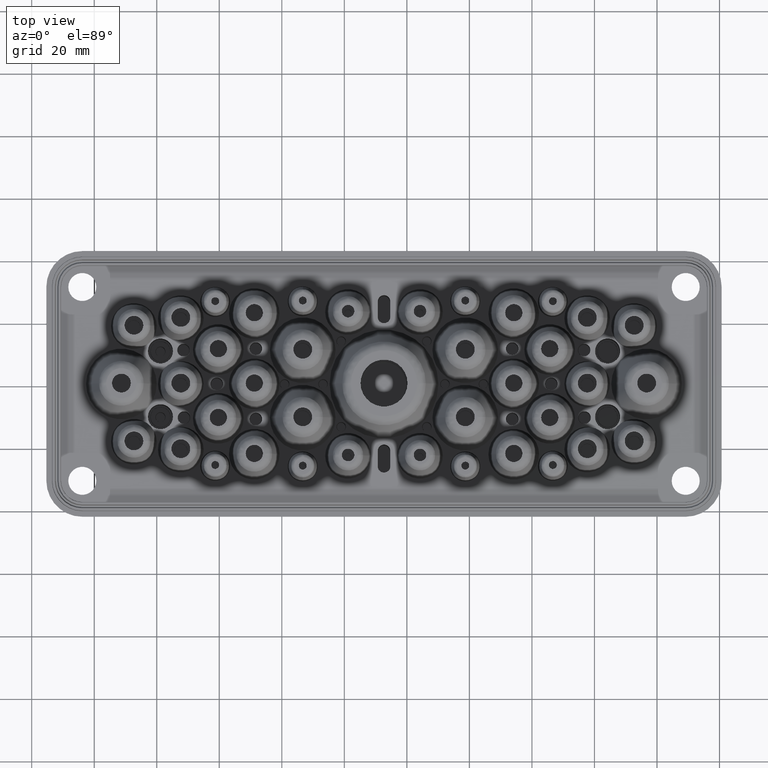
[diagram: clean part render]
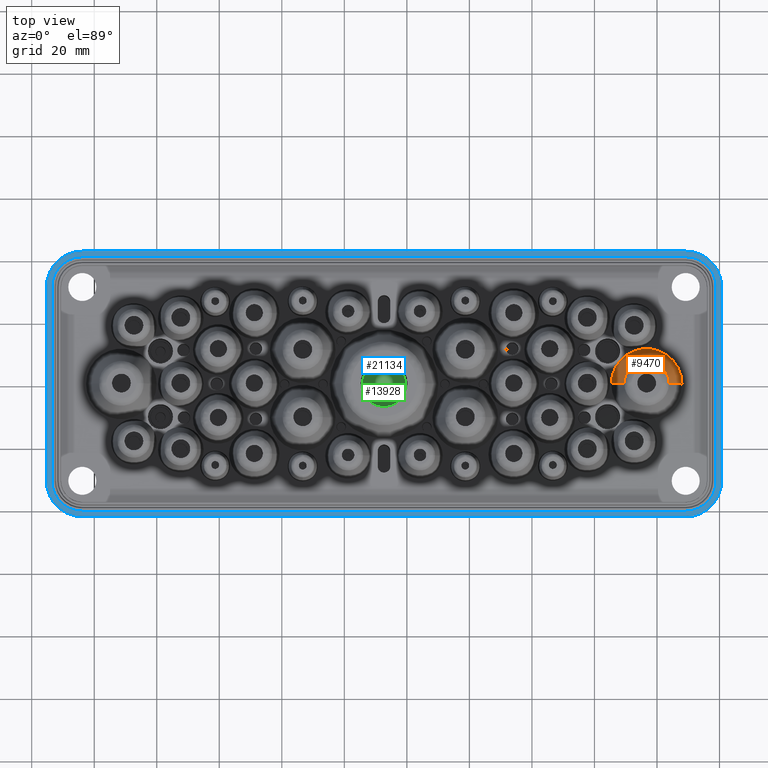
[diagram: same view with three faces highlighted in distinct colors, each labeled with its STEP entity id]
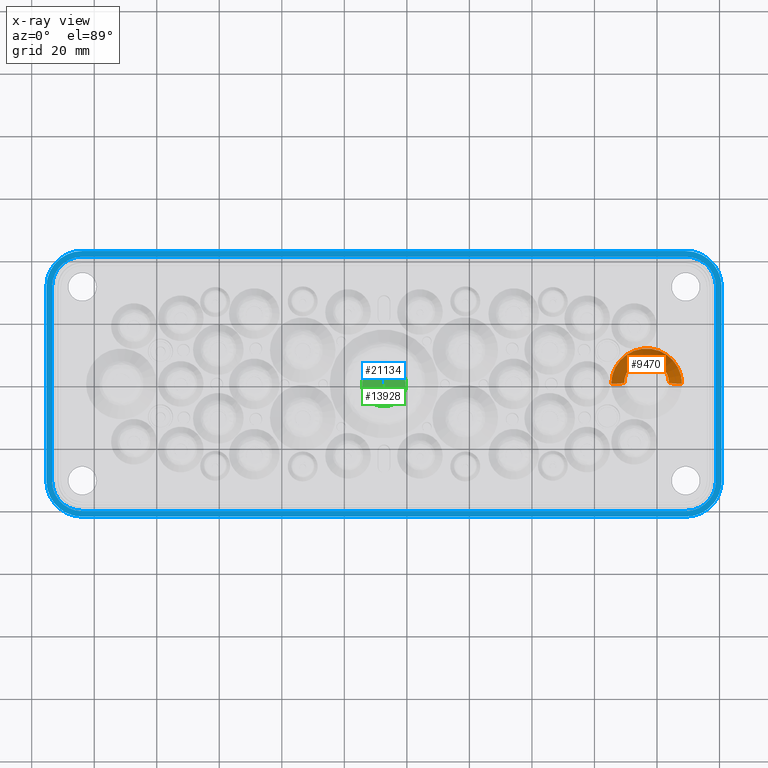
[diagram: x-ray of the same camera — body ghosted, the three highlighted faces saturated]
A machine part, top view with three faces highlighted in distinct colors.
The next image is the same camera in x-ray (body ghosted, the three faces saturated) — at least one of them is partly hidden behind the body in this view.
Their STEP definitions:

[orange] entity #9470 — the highlighted face is a freeform B-spline surface patch.
#4973 =( BOUNDED_SURFACE ( )  B_SPLINE_SURFACE ( 1, 3, ( 
 ( #38251, #6073, #14768, #24470 ),
 ( #20006, #52025, #56522, #47370 ) ),
 .UNSPECIFIED., .F., .F., .F. ) 
 B_SPLINE_SURFACE_WITH_KNOTS ( ( 2, 2 ),
 ( 4, 4 ),
 ( 0.0000000000000000000, 1.000000000000000000 ),
 ( 0.0000000000000000000, 1.000000000000000000 ),
 .UNSPECIFIED. ) 
 GEOMETRIC_REPRESENTATION_ITEM ( )  RATIONAL_B_SPLINE_SURFACE ( (
 ( 1.000000000000000000, 0.3333333333333334300, 0.3333333333333334300, 1.000000000000000000),
 ( 1.000000000000000000, 0.3333333333333334300, 0.3333333333333334300, 1.000000000000000000) ) ) 
 REPRESENTATION_ITEM ( '' )  SURFACE ( )  );
#6073 = CARTESIAN_POINT ( 'NONE',  ( 5.386483223678795600, -36.81030365296027200, 4.347214029870448300E-016 ) ) ;
#7654 = ORIENTED_EDGE ( 'NONE', *, *, #28589, .T. ) ;
#8295 = CARTESIAN_POINT ( 'NONE',  ( 27.98648322367879600, -59.41030365296027300, 0.0000000000000000000 ) ) ;
#8942 = CARTESIAN_POINT ( 'NONE',  ( 27.98648322367879600, -59.41030365296027300, 0.0000000000000000000 ) ) ;
#9470 = ADVANCED_FACE ( 'NONE', ( #30256 ), #4973, .T. ) ;
#9806 = DIRECTION ( 'NONE',  ( 0.0000000000000000000, 0.0000000000000000000, 1.000000000000000000 ) ) ;
#10935 = EDGE_CURVE ( 'NONE', #53210, #48986, #18572, .T. ) ;
#11099 = CARTESIAN_POINT ( 'NONE',  ( 5.386483223678794700, -59.41030365296027300, 0.0000000000000000000 ) ) ;
#12146 = ORIENTED_EDGE ( 'NONE', *, *, #58512, .F. ) ;
#12505 = CARTESIAN_POINT ( 'NONE',  ( 23.85358288465866400, -59.41030365296027300, 11.35505035831417000 ) ) ;
#14296 = CARTESIAN_POINT ( 'NONE',  ( 16.68648322367879500, -59.41030365296027300, 11.35505035831417000 ) ) ;
#14768 = CARTESIAN_POINT ( 'NONE',  ( 27.98648322367879600, -36.81030365296027200, 4.347214029870448300E-016 ) ) ;
#15858 = VECTOR ( 'NONE', #30582, 1000.000000000000000 ) ;
#15919 = VECTOR ( 'NONE', #49981, 1000.000000000000000 ) ;
#18572 = CIRCLE ( 'NONE', #48324, 11.30000000000000100 ) ;
#18941 = DIRECTION ( 'NONE',  ( 1.000000000000000000, 0.0000000000000000000, 0.0000000000000000000 ) ) ;
#19136 = ORIENTED_EDGE ( 'NONE', *, *, #31769, .F. ) ;
#20006 = CARTESIAN_POINT ( 'NONE',  ( 9.519383562698928700, -59.41030365296027300, 11.35505035831417000 ) ) ;
#24470 = CARTESIAN_POINT ( 'NONE',  ( 27.98648322367879600, -59.41030365296027300, 4.347214029870447800E-016 ) ) ;
#25932 = CARTESIAN_POINT ( 'NONE',  ( 5.386483223678794700, -59.41030365296027300, 0.0000000000000000000 ) ) ;
#26264 = EDGE_LOOP ( 'NONE', ( #12146, #35395, #7654, #19136 ) ) ;
#27766 = DIRECTION ( 'NONE',  ( -1.000000000000000000, 0.0000000000000000000, 0.0000000000000000000 ) ) ;
#28334 = CARTESIAN_POINT ( 'NONE',  ( 9.519383562698928700, -59.41030365296027300, 11.35505035831417000 ) ) ;
#28589 = EDGE_CURVE ( 'NONE', #48986, #46156, #35406, .T. ) ;
#29324 = AXIS2_PLACEMENT_3D ( 'NONE', #14296, #45925, #18941 ) ;
#30256 = FACE_OUTER_BOUND ( 'NONE', #26264, .T. ) ;
#30582 = DIRECTION ( 'NONE',  ( 0.3420201433256687100, 0.0000000000000000000, 0.9396926207859084300 ) ) ;
#31769 = EDGE_CURVE ( 'NONE', #48295, #46156, #43814, .T. ) ;
#32812 = CARTESIAN_POINT ( 'NONE',  ( 16.68648322367879500, -59.41030365296027300, -0.0000000000000000000 ) ) ;
#35395 = ORIENTED_EDGE ( 'NONE', *, *, #10935, .T. ) ;
#35406 = LINE ( 'NONE', #25932, #15858 ) ;
#38251 = CARTESIAN_POINT ( 'NONE',  ( 5.386483223678794700, -59.41030365296027300, 4.347214029870447800E-016 ) ) ;
#39102 = LINE ( 'NONE', #8295, #15919 ) ;
#43814 = CIRCLE ( 'NONE', #29324, 7.167099660979867600 ) ;
#45925 = DIRECTION ( 'NONE',  ( 0.0000000000000000000, 0.0000000000000000000, 1.000000000000000000 ) ) ;
#46156 = VERTEX_POINT ( 'NONE', #28334 ) ;
#47370 = CARTESIAN_POINT ( 'NONE',  ( 23.85358288465866400, -59.41030365296027300, 11.35505035831417000 ) ) ;
#48295 = VERTEX_POINT ( 'NONE', #12505 ) ;
#48324 = AXIS2_PLACEMENT_3D ( 'NONE', #32812, #9806, #27766 ) ;
#48986 = VERTEX_POINT ( 'NONE', #11099 ) ;
#49981 = DIRECTION ( 'NONE',  ( -0.3420201433256687100, -4.188538737676991800E-017, 0.9396926207859084300 ) ) ;
#52025 = CARTESIAN_POINT ( 'NONE',  ( 9.519383562698928700, -45.07610433100053600, 11.35505035831417000 ) ) ;
#53210 = VERTEX_POINT ( 'NONE', #8942 ) ;
#56522 = CARTESIAN_POINT ( 'NONE',  ( 23.85358288465866400, -45.07610433100053600, 11.35505035831417000 ) ) ;
#58512 = EDGE_CURVE ( 'NONE', #53210, #48295, #39102, .T. ) ;

[blue] entity #21134 — the highlighted planar face has unit normal (0, -0, 1).
#87 = VECTOR ( 'NONE', #14225, 1000.000000000000000 ) ;
#688 = AXIS2_PLACEMENT_3D ( 'NONE', #48454, #11380, #2319 ) ;
#846 = LINE ( 'NONE', #5913, #9581 ) ;
#1041 = CARTESIAN_POINT ( 'NONE',  ( 29.18648322367879200, -28.41030365296030500, -0.0000000000000000000 ) ) ;
#1149 = CIRCLE ( 'NONE', #8434, 11.50000000000000000 ) ;
#1239 = DIRECTION ( 'NONE',  ( -1.224606353822377500E-016, 1.000000000000000000, 0.0000000000000000000 ) ) ;
#1268 = CARTESIAN_POINT ( 'NONE',  ( 38.88648322367876600, -43.91030365296026600, -0.0000000000000000000 ) ) ;
#1777 = LINE ( 'NONE', #10866, #50258 ) ;
#2319 = DIRECTION ( 'NONE',  ( -1.000000000000000000, 0.0000000000000000000, 0.0000000000000000000 ) ) ;
#2795 = CIRCLE ( 'NONE', #16102, 9.700000000000013500 ) ;
#4362 = EDGE_CURVE ( 'NONE', #25025, #58010, #16740, .T. ) ;
#4797 = VERTEX_POINT ( 'NONE', #52735 ) ;
#5117 = CARTESIAN_POINT ( 'NONE',  ( -163.8135167763211900, -100.1103036529602500, 0.0000000000000000000 ) ) ;
#5491 = ORIENTED_EDGE ( 'NONE', *, *, #26037, .T. ) ;
#5913 = CARTESIAN_POINT ( 'NONE',  ( -37.08015781548498800, -16.91030365296028000, 0.0000000000000000000 ) ) ;
#5949 = LINE ( 'NONE', #19440, #52291 ) ;
#6178 = ORIENTED_EDGE ( 'NONE', *, *, #44513, .F. ) ;
#6607 = EDGE_CURVE ( 'NONE', #4797, #50328, #5949, .T. ) ;
#6710 = EDGE_CURVE ( 'NONE', #39490, #44895, #56637, .T. ) ;
#7062 = AXIS2_PLACEMENT_3D ( 'NONE', #22155, #39971, #40576 ) ;
#8434 = AXIS2_PLACEMENT_3D ( 'NONE', #46102, #59710, #27628 ) ;
#8943 = EDGE_CURVE ( 'NONE', #58010, #39490, #30247, .T. ) ;
#9420 = CARTESIAN_POINT ( 'NONE',  ( -19.06351677632121500, -100.1103036529602500, 0.0000000000000000000 ) ) ;
#9517 = VECTOR ( 'NONE', #1239, 1000.000000000000000 ) ;
#9581 = VECTOR ( 'NONE', #38288, 1000.000000000000000 ) ;
#10593 = EDGE_LOOP ( 'NONE', ( #46871, #17593, #35867, #43646, #15655, #38958, #5491, #59930 ) ) ;
#10769 = CARTESIAN_POINT ( 'NONE',  ( 40.68648322367879200, -49.24446094255875300, -0.0000000000000000000 ) ) ;
#10866 = CARTESIAN_POINT ( 'NONE',  ( -115.5635167763211900, -18.71030365296029200, 0.0000000000000000000 ) ) ;
#11005 = FACE_OUTER_BOUND ( 'NONE', #48174, .T. ) ;
#11048 = EDGE_CURVE ( 'NONE', #19448, #27180, #11274, .T. ) ;
#11131 = CIRCLE ( 'NONE', #13163, 11.50000000000001100 ) ;
#11274 = LINE ( 'NONE', #10769, #38075 ) ;
#11380 = DIRECTION ( 'NONE',  ( 0.0000000000000000000, 0.0000000000000000000, -1.000000000000000000 ) ) ;
#11847 = CARTESIAN_POINT ( 'NONE',  ( 38.88648322367875200, -28.41030365296027700, -0.0000000000000000000 ) ) ;
#11857 = VECTOR ( 'NONE', #56964, 1000.000000000000000 ) ;
#11971 = EDGE_CURVE ( 'NONE', #50328, #48259, #56890, .T. ) ;
#12687 = CARTESIAN_POINT ( 'NONE',  ( 29.18648322367874900, -18.71030365296027000, -0.0000000000000000000 ) ) ;
#12910 = CARTESIAN_POINT ( 'NONE',  ( 29.18648322367878100, -90.41030365296026600, -0.0000000000000000000 ) ) ;
#13144 = FACE_BOUND ( 'NONE', #10593, .T. ) ;
#13163 = AXIS2_PLACEMENT_3D ( 'NONE', #52076, #51278, #42766 ) ;
#14215 = EDGE_CURVE ( 'NONE', #31710, #55770, #31180, .T. ) ;
#14225 = DIRECTION ( 'NONE',  ( -1.000000000000000000, 0.0000000000000000000, 0.0000000000000000000 ) ) ;
#14326 = AXIS2_PLACEMENT_3D ( 'NONE', #40486, #49801, #22061 ) ;
#14920 = LINE ( 'NONE', #48346, #24308 ) ;
#15561 = CARTESIAN_POINT ( 'NONE',  ( -173.5135167763212100, -74.91030365296028000, 0.0000000000000000000 ) ) ;
#15655 = ORIENTED_EDGE ( 'NONE', *, *, #55682, .T. ) ;
#16102 = AXIS2_PLACEMENT_3D ( 'NONE', #24474, #24867, #43118 ) ;
#16740 = LINE ( 'NONE', #9420, #87 ) ;
#17593 = ORIENTED_EDGE ( 'NONE', *, *, #8943, .T. ) ;
#17690 = LINE ( 'NONE', #1268, #11857 ) ;
#18076 = EDGE_CURVE ( 'NONE', #27180, #51890, #1149, .T. ) ;
#18397 = DIRECTION ( 'NONE',  ( 0.0000000000000000000, 0.0000000000000000000, -1.000000000000000000 ) ) ;
#19387 = EDGE_CURVE ( 'NONE', #35374, #4797, #11131, .T. ) ;
#19440 = CARTESIAN_POINT ( 'NONE',  ( -175.3135167763211900, -52.14789073426605600, 0.0000000000000000000 ) ) ;
#19448 = VERTEX_POINT ( 'NONE', #33818 ) ;
#20451 = VERTEX_POINT ( 'NONE', #25467 ) ;
#20970 = AXIS2_PLACEMENT_3D ( 'NONE', #12910, #18397, #59357 ) ;
#21134 = ADVANCED_FACE ( 'NONE', ( #13144, #11005 ), #25984, .T. ) ;
#22061 = DIRECTION ( 'NONE',  ( -1.000000000000000000, 0.0000000000000000000, 0.0000000000000000000 ) ) ;
#22155 = CARTESIAN_POINT ( 'NONE',  ( -67.31351677632120800, -59.41030365296027300, 0.0000000000000000000 ) ) ;
#23700 = CARTESIAN_POINT ( 'NONE',  ( -173.5135167763211800, -28.41030365296029800, 0.0000000000000000000 ) ) ;
#24308 = VECTOR ( 'NONE', #30079, 1000.000000000000000 ) ;
#24474 = CARTESIAN_POINT ( 'NONE',  ( -163.8135167763211900, -28.41030365296030200, 0.0000000000000000000 ) ) ;
#24867 = DIRECTION ( 'NONE',  ( 0.0000000000000000000, 0.0000000000000000000, -1.000000000000000000 ) ) ;
#25025 = VERTEX_POINT ( 'NONE', #34018 ) ;
#25334 = CARTESIAN_POINT ( 'NONE',  ( -175.3135167763211900, -28.41030365296024500, 0.0000000000000000000 ) ) ;
#25467 = CARTESIAN_POINT ( 'NONE',  ( -163.8135167763211900, -18.71030365296029900, 0.0000000000000000000 ) ) ;
#25824 = AXIS2_PLACEMENT_3D ( 'NONE', #33882, #57836, #34073 ) ;
#25984 = PLANE ( 'NONE',  #7062 ) ;
#26037 = EDGE_CURVE ( 'NONE', #55770, #38080, #17690, .T. ) ;
#26317 = CIRCLE ( 'NONE', #58866, 11.50000000000000000 ) ;
#27180 = VERTEX_POINT ( 'NONE', #44961 ) ;
#27628 = DIRECTION ( 'NONE',  ( -1.000000000000000000, 0.0000000000000000000, 0.0000000000000000000 ) ) ;
#27772 = CARTESIAN_POINT ( 'NONE',  ( 29.18648322367879200, -101.9103036529602900, -0.0000000000000000000 ) ) ;
#28129 = DIRECTION ( 'NONE',  ( -1.000000000000000000, 0.0000000000000000000, 0.0000000000000000000 ) ) ;
#28496 = CARTESIAN_POINT ( 'NONE',  ( -163.8135167763211900, -101.9103036529602500, 0.0000000000000000000 ) ) ;
#28738 = DIRECTION ( 'NONE',  ( 0.0000000000000000000, 0.0000000000000000000, -1.000000000000000000 ) ) ;
#30079 = DIRECTION ( 'NONE',  ( -1.000000000000000000, 1.836909530733565900E-016, 0.0000000000000000000 ) ) ;
#30247 = CIRCLE ( 'NONE', #688, 9.700000000000013500 ) ;
#31180 = CIRCLE ( 'NONE', #14326, 9.700000000000001100 ) ;
#31710 = VERTEX_POINT ( 'NONE', #12687 ) ;
#32933 = ORIENTED_EDGE ( 'NONE', *, *, #41923, .F. ) ;
#33818 = CARTESIAN_POINT ( 'NONE',  ( 40.68648322367877800, -28.41030365296030900, -0.0000000000000000000 ) ) ;
#33882 = CARTESIAN_POINT ( 'NONE',  ( -163.8135167763211900, -28.41030365296024500, 0.0000000000000000000 ) ) ;
#34018 = CARTESIAN_POINT ( 'NONE',  ( 29.18648322367878100, -100.1103036529602500, -0.0000000000000000000 ) ) ;
#34073 = DIRECTION ( 'NONE',  ( -1.000000000000000000, 0.0000000000000000000, 0.0000000000000000000 ) ) ;
#35374 = VERTEX_POINT ( 'NONE', #28496 ) ;
#35867 = ORIENTED_EDGE ( 'NONE', *, *, #6710, .T. ) ;
#38075 = VECTOR ( 'NONE', #38309, 1000.000000000000000 ) ;
#38080 = VERTEX_POINT ( 'NONE', #44100 ) ;
#38288 = DIRECTION ( 'NONE',  ( 1.000000000000000000, -3.061515884555943100E-016, -0.0000000000000000000 ) ) ;
#38309 = DIRECTION ( 'NONE',  ( -2.449212707644754500E-016, -1.000000000000000000, 0.0000000000000000000 ) ) ;
#38958 = ORIENTED_EDGE ( 'NONE', *, *, #14215, .T. ) ;
#39490 = VERTEX_POINT ( 'NONE', #58798 ) ;
#39971 = DIRECTION ( 'NONE',  ( 0.0000000000000000000, -0.0000000000000000000, 1.000000000000000000 ) ) ;
#40486 = CARTESIAN_POINT ( 'NONE',  ( 29.18648322367874900, -28.41030365296027700, -0.0000000000000000000 ) ) ;
#40576 = DIRECTION ( 'NONE',  ( 1.000000000000000000, 0.0000000000000000000, 0.0000000000000000000 ) ) ;
#41923 = EDGE_CURVE ( 'NONE', #42251, #19448, #26317, .T. ) ;
#42251 = VERTEX_POINT ( 'NONE', #54842 ) ;
#42766 = DIRECTION ( 'NONE',  ( -1.000000000000000000, 0.0000000000000000000, 0.0000000000000000000 ) ) ;
#43118 = DIRECTION ( 'NONE',  ( -1.000000000000000000, 0.0000000000000000000, 0.0000000000000000000 ) ) ;
#43209 = ORIENTED_EDGE ( 'NONE', *, *, #18076, .F. ) ;
#43646 = ORIENTED_EDGE ( 'NONE', *, *, #54165, .T. ) ;
#44100 = CARTESIAN_POINT ( 'NONE',  ( 38.88648322367876600, -90.41030365296026600, -0.0000000000000000000 ) ) ;
#44513 = EDGE_CURVE ( 'NONE', #51890, #35374, #14920, .T. ) ;
#44895 = VERTEX_POINT ( 'NONE', #23700 ) ;
#44961 = CARTESIAN_POINT ( 'NONE',  ( 40.68648322367876300, -90.41030365296029500, -0.0000000000000000000 ) ) ;
#45250 = EDGE_CURVE ( 'NONE', #38080, #25025, #58418, .T. ) ;
#46102 = CARTESIAN_POINT ( 'NONE',  ( 29.18648322367879200, -90.41030365296029500, -0.0000000000000000000 ) ) ;
#46871 = ORIENTED_EDGE ( 'NONE', *, *, #4362, .T. ) ;
#47933 = DIRECTION ( 'NONE',  ( 1.000000000000000000, 1.224606353822377300E-016, 0.0000000000000000000 ) ) ;
#47995 = ORIENTED_EDGE ( 'NONE', *, *, #19387, .F. ) ;
#48174 = EDGE_LOOP ( 'NONE', ( #47995, #6178, #43209, #52205, #32933, #55675, #51373, #52012 ) ) ;
#48259 = VERTEX_POINT ( 'NONE', #48972 ) ;
#48346 = CARTESIAN_POINT ( 'NONE',  ( -31.80491194038745200, -101.9103036529602800, 0.0000000000000000000 ) ) ;
#48454 = CARTESIAN_POINT ( 'NONE',  ( -163.8135167763211900, -90.41030365296026600, 0.0000000000000000000 ) ) ;
#48972 = CARTESIAN_POINT ( 'NONE',  ( -163.8135167763211900, -16.91030365296023800, 0.0000000000000000000 ) ) ;
#49801 = DIRECTION ( 'NONE',  ( 0.0000000000000000000, 0.0000000000000000000, -1.000000000000000000 ) ) ;
#50258 = VECTOR ( 'NONE', #47933, 1000.000000000000000 ) ;
#50328 = VERTEX_POINT ( 'NONE', #25334 ) ;
#51278 = DIRECTION ( 'NONE',  ( 0.0000000000000000000, 0.0000000000000000000, -1.000000000000000000 ) ) ;
#51373 = ORIENTED_EDGE ( 'NONE', *, *, #11971, .F. ) ;
#51440 = DIRECTION ( 'NONE',  ( 1.224606353822377300E-016, 1.000000000000000000, 0.0000000000000000000 ) ) ;
#51890 = VERTEX_POINT ( 'NONE', #27772 ) ;
#52012 = ORIENTED_EDGE ( 'NONE', *, *, #6607, .F. ) ;
#52076 = CARTESIAN_POINT ( 'NONE',  ( -163.8135167763211900, -90.41030365296026600, 0.0000000000000000000 ) ) ;
#52205 = ORIENTED_EDGE ( 'NONE', *, *, #11048, .F. ) ;
#52291 = VECTOR ( 'NONE', #51440, 1000.000000000000000 ) ;
#52735 = CARTESIAN_POINT ( 'NONE',  ( -175.3135167763211900, -90.41030365296026600, 0.0000000000000000000 ) ) ;
#54165 = EDGE_CURVE ( 'NONE', #44895, #20451, #2795, .T. ) ;
#54842 = CARTESIAN_POINT ( 'NONE',  ( 29.18648322367879200, -16.91030365296029500, -0.0000000000000000000 ) ) ;
#55675 = ORIENTED_EDGE ( 'NONE', *, *, #57276, .F. ) ;
#55682 = EDGE_CURVE ( 'NONE', #20451, #31710, #1777, .T. ) ;
#55770 = VERTEX_POINT ( 'NONE', #11847 ) ;
#56637 = LINE ( 'NONE', #15561, #9517 ) ;
#56890 = CIRCLE ( 'NONE', #25824, 11.50000000000001100 ) ;
#56964 = DIRECTION ( 'NONE',  ( 2.449212707644755000E-016, -1.000000000000000000, -0.0000000000000000000 ) ) ;
#57276 = EDGE_CURVE ( 'NONE', #48259, #42251, #846, .T. ) ;
#57836 = DIRECTION ( 'NONE',  ( 0.0000000000000000000, 0.0000000000000000000, -1.000000000000000000 ) ) ;
#58010 = VERTEX_POINT ( 'NONE', #5117 ) ;
#58418 = CIRCLE ( 'NONE', #20970, 9.700000000000001100 ) ;
#58798 = CARTESIAN_POINT ( 'NONE',  ( -173.5135167763211800, -90.41030365296026600, 0.0000000000000000000 ) ) ;
#58866 = AXIS2_PLACEMENT_3D ( 'NONE', #1041, #28738, #28129 ) ;
#59357 = DIRECTION ( 'NONE',  ( -1.000000000000000000, 0.0000000000000000000, 0.0000000000000000000 ) ) ;
#59710 = DIRECTION ( 'NONE',  ( 0.0000000000000000000, 0.0000000000000000000, -1.000000000000000000 ) ) ;
#59930 = ORIENTED_EDGE ( 'NONE', *, *, #45250, .T. ) ;

[green] entity #13928 — the highlighted planar face has unit normal (0, -0, 1).
#803 = CIRCLE ( 'NONE', #31197, 6.964280459447108400 ) ;
#882 = DIRECTION ( 'NONE',  ( 0.0000000000000000000, -0.0000000000000000000, 1.000000000000000000 ) ) ;
#3031 = EDGE_LOOP ( 'NONE', ( #58009, #5195 ) ) ;
#4932 = CARTESIAN_POINT ( 'NONE',  ( -74.27779723576829000, -59.41030365296028000, -14.00000000000000000 ) ) ;
#5144 = CARTESIAN_POINT ( 'NONE',  ( -59.61351677632117700, -59.41030365296028000, -14.00000000000000000 ) ) ;
#5195 = ORIENTED_EDGE ( 'NONE', *, *, #36373, .F. ) ;
#5740 = CARTESIAN_POINT ( 'NONE',  ( -67.31351677632118000, -59.41030365296028000, -14.00000000000000000 ) ) ;
#6699 = AXIS2_PLACEMENT_3D ( 'NONE', #20512, #57640, #19732 ) ;
#10014 = DIRECTION ( 'NONE',  ( 1.000000000000000000, 0.0000000000000000000, 0.0000000000000000000 ) ) ;
#10376 = PLANE ( 'NONE',  #27874 ) ;
#12375 = VERTEX_POINT ( 'NONE', #4932 ) ;
#13928 = ADVANCED_FACE ( 'NONE', ( #59564 ), #10376, .T. ) ;
#15219 = DIRECTION ( 'NONE',  ( -1.000000000000000000, 0.0000000000000000000, 0.0000000000000000000 ) ) ;
#18853 = CIRCLE ( 'NONE', #6699, 6.964280459447108400 ) ;
#19732 = DIRECTION ( 'NONE',  ( -1.000000000000000000, 0.0000000000000000000, 0.0000000000000000000 ) ) ;
#20212 = VERTEX_POINT ( 'NONE', #40327 ) ;
#20512 = CARTESIAN_POINT ( 'NONE',  ( -67.31351677632118000, -59.41030365296028000, -14.00000000000000000 ) ) ;
#22031 = EDGE_CURVE ( 'NONE', #12375, #20212, #18853, .T. ) ;
#27874 = AXIS2_PLACEMENT_3D ( 'NONE', #5144, #882, #10014 ) ;
#31197 = AXIS2_PLACEMENT_3D ( 'NONE', #5740, #42768, #15219 ) ;
#36373 = EDGE_CURVE ( 'NONE', #20212, #12375, #803, .T. ) ;
#40327 = CARTESIAN_POINT ( 'NONE',  ( -60.34923631687407000, -59.41030365296028000, -14.00000000000000000 ) ) ;
#42768 = DIRECTION ( 'NONE',  ( 0.0000000000000000000, 0.0000000000000000000, -1.000000000000000000 ) ) ;
#57640 = DIRECTION ( 'NONE',  ( 0.0000000000000000000, 0.0000000000000000000, -1.000000000000000000 ) ) ;
#58009 = ORIENTED_EDGE ( 'NONE', *, *, #22031, .F. ) ;
#59564 = FACE_OUTER_BOUND ( 'NONE', #3031, .T. ) ;